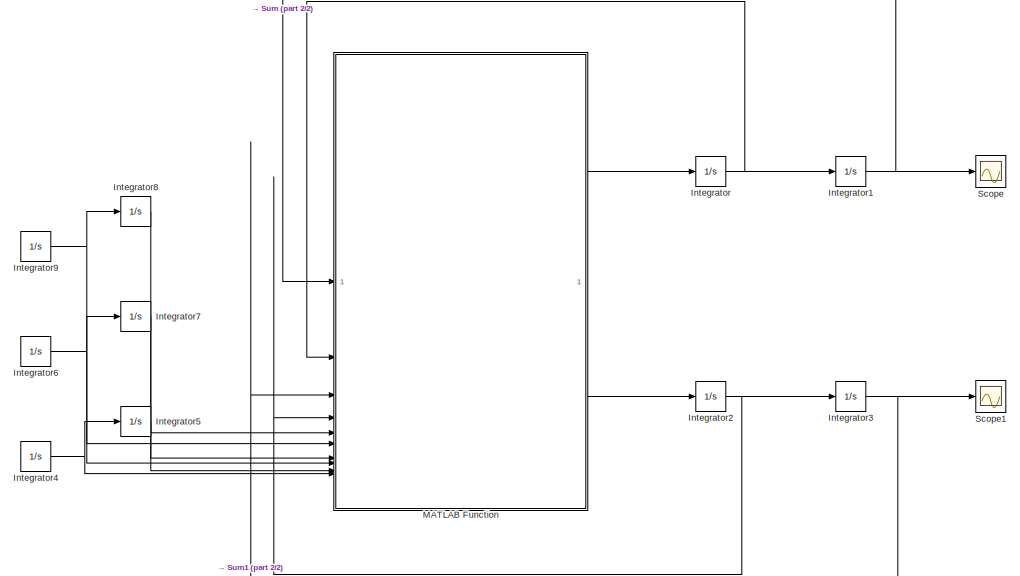
[diagram: root canvas - part 1/2, right side, full height]
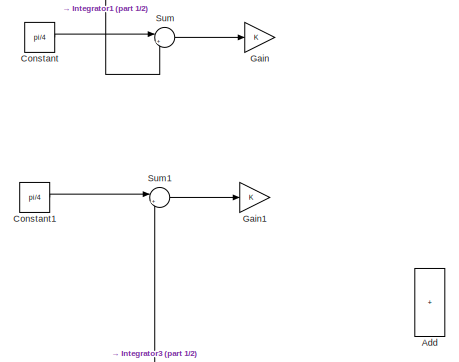
[diagram: root canvas - part 2/2, middle left region]
MODEL slx_e7204b9ff387
KIND model
CONFIG AbsTol = auto
CONFIG EnableMultiTasking = off
CONFIG FixedStep = auto
CONFIG MaxStep = auto
CONFIG MinStep = auto
CONFIG RelTol = 1e-3
CONFIG SampleTimeConstraint = Unconstrained
CONFIG SolverName = VariableStepAuto
CONFIG StartTime = 0.0
CONFIG StopTime = 10.0
BLOCK [Sum] Add
  IconShape = rectangular
  Inputs = +++
BLOCK [Constant] Constant
  Value = pi/4
BLOCK [Constant] Constant1
  Value = pi/4
BLOCK [Gain] Gain
BLOCK [Gain] Gain1
BLOCK [Integrator] Integrator
BLOCK [Integrator] Integrator1
  InitialCondition = pi/4
BLOCK [Integrator] Integrator2
BLOCK [Integrator] Integrator3
  InitialCondition = pi/4
BLOCK [Integrator] Integrator4
BLOCK [Integrator] Integrator5
BLOCK [Integrator] Integrator6
BLOCK [Integrator] Integrator7
BLOCK [Integrator] Integrator8
BLOCK [Integrator] Integrator9
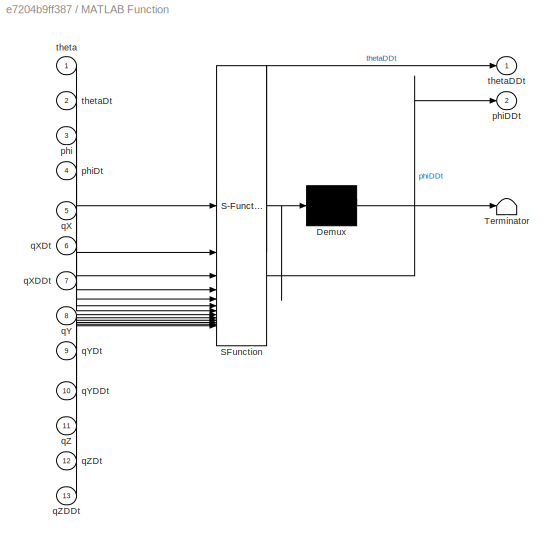
BLOCK [SubSystem] MATLAB Function
  ErrorFcn = Stateflow.Translate.translate
  PermitHierarchicalResolution = ExplicitOnly
  SFBlockType = MATLAB Function
  TreatAsAtomicUnit = on
BLOCK [Demux] MATLAB Function/ Demux 
  Outputs = 1
BLOCK [S-Function] MATLAB Function/ SFunction 
  EnableBusSupport = off
  FunctionName = sf_sfun
  PortCounts = [13 3]
  SFcnIsStateOwnerBlock = off
  SFunctionDeploymentMode = off
  Tag = Stateflow S-Function 2
BLOCK [Terminator] MATLAB Function/ Terminator 
BLOCK [Inport] MATLAB Function/phi
  Port = 3
BLOCK [Outport] MATLAB Function/phiDDt
  Port = 2
BLOCK [Inport] MATLAB Function/phiDt
  Port = 4
BLOCK [Inport] MATLAB Function/qX
  Port = 5
BLOCK [Inport] MATLAB Function/qXDDt
  Port = 7
BLOCK [Inport] MATLAB Function/qXDt
  Port = 6
BLOCK [Inport] MATLAB Function/qY
  Port = 8
BLOCK [Inport] MATLAB Function/qYDDt
  Port = 10
BLOCK [Inport] MATLAB Function/qYDt
  Port = 9
BLOCK [Inport] MATLAB Function/qZ
  Port = 11
BLOCK [Inport] MATLAB Function/qZDDt
  Port = 13
BLOCK [Inport] MATLAB Function/qZDt
  Port = 12
BLOCK [Inport] MATLAB Function/theta
BLOCK [Outport] MATLAB Function/thetaDDt
BLOCK [Inport] MATLAB Function/thetaDt
  Port = 2
BLOCK [Scope] Scope
  Floating = off
  NumInputPorts = 1
  ScopeSpecificationString = Simulink.scopes.TimeScopeBlockCfg('CurrentConfiguration', extmgr.ConfigurationSet(extmgr.Configuration('Core','General UI',true),extmgr.Configuration('Core','Source UI',true),extmgr.Configuration('Sources','WiredSimulink',true),extmgr.Configuration('Visuals','Time Domain',true),extmgr.Configuration('Tools','Plot Navigation',true),extmgr.Configuration('Tools','Measurements',true,'Version','2023b'))...<+50ch>
BLOCK [Scope] Scope1
  Floating = off
  NumInputPorts = 1
  ScopeSpecificationString = Simulink.scopes.TimeScopeBlockCfg('CurrentConfiguration', extmgr.ConfigurationSet(extmgr.Configuration('Core','General UI',true),extmgr.Configuration('Core','Source UI',true),extmgr.Configuration('Sources','WiredSimulink',true,'DataLoggingVariableName','ScopeData1'),extmgr.Configuration('Visuals','Time Domain',true),extmgr.Configuration('Tools','Plot Navigation',true),extmgr.Configuration('Tools',...<+89ch>
BLOCK [Sum] Sum
  Inputs = |+-
BLOCK [Sum] Sum1
  Inputs = |+-
LINE Constant1:1 -> Sum1:1
LINE Constant:1 -> Sum:1
NET Integrator1:1 -> MATLAB Function:1, Scope:1, Sum:2
NET Integrator2:1 -> Integrator3:1, MATLAB Function:4
NET Integrator3:1 -> MATLAB Function:3, Scope1:1, Sum1:2
NET Integrator4:1 -> Integrator5:1, MATLAB Function:12
LINE Integrator5:1 -> MATLAB Function:11
NET Integrator6:1 -> Integrator7:1, MATLAB Function:9
LINE Integrator7:1 -> MATLAB Function:8
LINE Integrator8:1 -> MATLAB Function:5
NET Integrator9:1 -> Integrator8:1, MATLAB Function:6
NET Integrator:1 -> Integrator1:1, MATLAB Function:2
LINE MATLAB Function:1 -> Integrator:1
LINE MATLAB Function:2 -> Integrator2:1
LINE Sum1:1 -> Gain1:1
LINE Sum:1 -> Gain:1
note: NET lines group one-source signal fan-out (src -> all destinations, sorted); 1:1 wires keep LINE
CHART MATLAB Function states=1 transitions=1
  STATE_LABEL 'eML_blk_kernel()'
  STATE_LABEL 'SCRIPT:\nfunction [thetaDDt, phiDDt]= cube_dynamics(theta, thetaDt, phi, phiDt, qX, qXDt, qXDDt, qY, qYDt, qYDDt, qZ, qZDt, qZDDt)\n\n    thetaDDt = -((cos(theta)*(RYIXZ*cos(qY)+RYIZZ*sin(qY))*(cos(phi)*cos(qY)+sin(phi)*sin(qY)*sin(theta))+sin(phi)*cos(theta)*(CIXY*cos(  ...\n    theta)-CIYY*sin(theta)-RYIYY*sin(theta)-mR*RCMX*RCMY*cos(theta)-mR*RCMX*RCMZ*cos(theta)-mR*RCMY*RCMZ*cos(theta))+cos(phi)*(...<+3608ch>'
CHART  states=0 transitions=0
